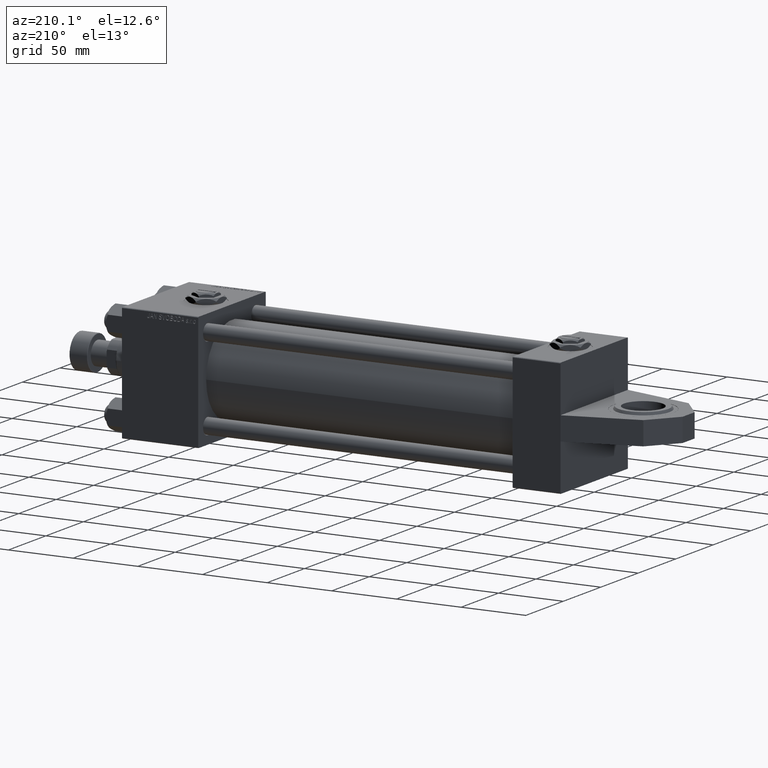
[diagram: clean part render]
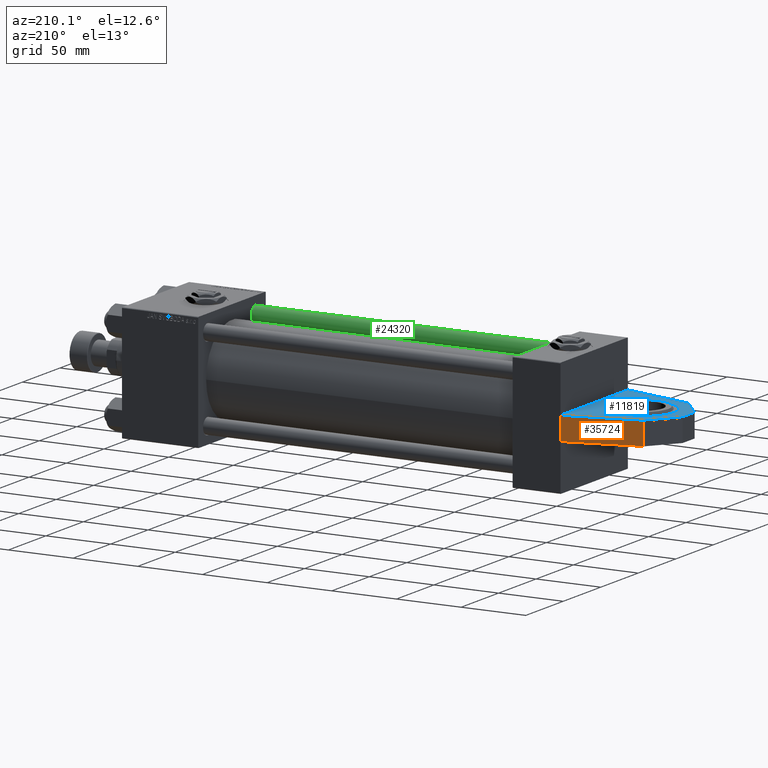
[diagram: same view with three faces highlighted in distinct colors, each labeled with its STEP entity id]
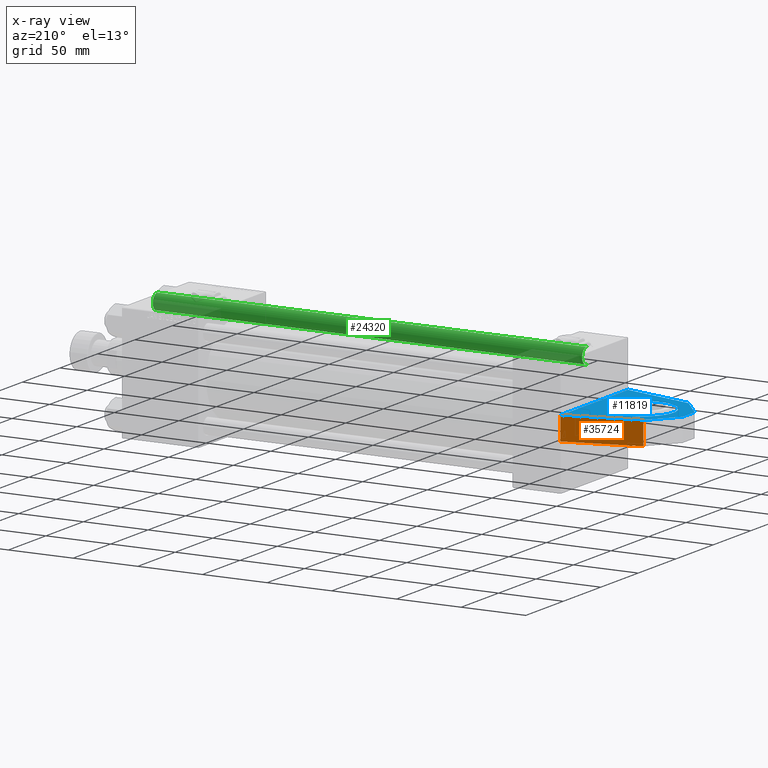
[diagram: x-ray of the same camera — body ghosted, the three highlighted faces saturated]
A machine part, auxiliary view with three faces highlighted in distinct colors.
The next image is the same camera in x-ray (body ghosted, the three faces saturated) — at least one of them is partly hidden behind the body in this view.
Their STEP definitions:

[orange] entity #35724 — the highlighted planar face has unit normal (-0.2588, 0.9659, 0).
#4272 = ORIENTED_EDGE ( 'NONE', *, *, #50606, .T. ) ;
#4644 = ORIENTED_EDGE ( 'NONE', *, *, #36524, .F. ) ;
#5444 = VERTEX_POINT ( 'NONE', #24447 ) ;
#6392 = CARTESIAN_POINT ( 'NONE',  ( -55.50000000000000711, -9.000000000000000000, -30.12881982007243309 ) ) ;
#6656 = DIRECTION ( 'NONE',  ( 0.000000000000000000, 1.000000000000000000, 0.000000000000000000 ) ) ;
#8480 = ORIENTED_EDGE ( 'NONE', *, *, #8742, .F. ) ;
#8600 = CARTESIAN_POINT ( 'NONE',  ( -55.50000000000000711, -9.000000000000000000, -30.12881982007243309 ) ) ;
#8650 = VERTEX_POINT ( 'NONE', #12805 ) ;
#8742 = EDGE_CURVE ( 'NONE', #40298, #27896, #13603, .T. ) ;
#10136 = DIRECTION ( 'NONE',  ( -0.9659258262890672020, 0.000000000000000000, 0.2588190451025247918 ) ) ;
#12184 = DIRECTION ( 'NONE',  ( 0.000000000000000000, 1.000000000000000000, 0.000000000000000000 ) ) ;
#12789 = VECTOR ( 'NONE', #6656, 1000.000000000000000 ) ;
#12805 = CARTESIAN_POINT ( 'NONE',  ( -55.50000000000000711, 9.000000000000000000, -30.12881982007243309 ) ) ;
#13603 = LINE ( 'NONE', #34905, #12789 ) ;
#16437 = CARTESIAN_POINT ( 'NONE',  ( -55.50000000000000711, -9.000000000000000000, -30.12881982007243309 ) ) ;
#17604 = FACE_OUTER_BOUND ( 'NONE', #39413, .T. ) ;
#23986 = ORIENTED_EDGE ( 'NONE', *, *, #47056, .T. ) ;
#24323 = DIRECTION ( 'NONE',  ( -0.9659258262890670910, -0.000000000000000000, 0.2588190451025247918 ) ) ;
#24447 = CARTESIAN_POINT ( 'NONE',  ( -55.50000000000000711, -9.000000000000000000, -30.12881982007243309 ) ) ;
#24464 = CARTESIAN_POINT ( 'NONE',  ( -55.50000000000000711, 9.000000000000000000, -30.12881982007243309 ) ) ;
#27896 = VERTEX_POINT ( 'NONE', #42348 ) ;
#28243 = VECTOR ( 'NONE', #24323, 1000.000000000000227 ) ;
#28762 = VECTOR ( 'NONE', #40459, 1000.000000000000227 ) ;
#30951 = VECTOR ( 'NONE', #12184, 1000.000000000000000 ) ;
#32974 = AXIS2_PLACEMENT_3D ( 'NONE', #6392, #37572, #10136 ) ;
#34905 = CARTESIAN_POINT ( 'NONE',  ( 0.000000000000000000, -9.000000000000000000, -45.00000000000000000 ) ) ;
#35724 = ADVANCED_FACE ( 'NONE', ( #17604 ), #42372, .T. ) ;
#36524 = EDGE_CURVE ( 'NONE', #27896, #8650, #49498, .T. ) ;
#37289 = CARTESIAN_POINT ( 'NONE',  ( 0.000000000000000000, -8.999999999999987566, -44.99999999999999289 ) ) ;
#37572 = DIRECTION ( 'NONE',  ( -0.2588190451025247918, 0.000000000000000000, -0.9659258262890672020 ) ) ;
#39413 = EDGE_LOOP ( 'NONE', ( #4644, #8480, #23986, #4272 ) ) ;
#40298 = VERTEX_POINT ( 'NONE', #37289 ) ;
#40418 = LINE ( 'NONE', #16437, #30951 ) ;
#40459 = DIRECTION ( 'NONE',  ( -0.9659258262890670910, -0.000000000000000000, 0.2588190451025247918 ) ) ;
#41099 = LINE ( 'NONE', #8600, #28243 ) ;
#42348 = CARTESIAN_POINT ( 'NONE',  ( 0.000000000000000000, 9.000000000000000000, -45.00000000000000000 ) ) ;
#42372 = PLANE ( 'NONE',  #32974 ) ;
#47056 = EDGE_CURVE ( 'NONE', #40298, #5444, #41099, .T. ) ;
#49498 = LINE ( 'NONE', #24464, #28762 ) ;
#50606 = EDGE_CURVE ( 'NONE', #5444, #8650, #40418, .T. ) ;

[blue] entity #11819 — the highlighted planar face has unit normal (0, 0, 1).
#440 = LINE ( 'NONE', #26547, #5386 ) ;
#2342 = CARTESIAN_POINT ( 'NONE',  ( 0.000000000000000000, 9.000000000000000000, 0.000000000000000000 ) ) ;
#2492 = DIRECTION ( 'NONE',  ( 0.000000000000000000, 0.000000000000000000, -1.000000000000000000 ) ) ;
#4225 = FACE_BOUND ( 'NONE', #22500, .T. ) ;
#5386 = VECTOR ( 'NONE', #50535, 1000.000000000000000 ) ;
#5523 = VERTEX_POINT ( 'NONE', #9798 ) ;
#5557 = CARTESIAN_POINT ( 'NONE',  ( -73.00000000000001421, 9.000000000000000000, 8.000000000000005329 ) ) ;
#5844 = ORIENTED_EDGE ( 'NONE', *, *, #15903, .T. ) ;
#6080 = LINE ( 'NONE', #18355, #39274 ) ;
#6851 = ORIENTED_EDGE ( 'NONE', *, *, #18851, .T. ) ;
#7669 = CARTESIAN_POINT ( 'NONE',  ( -38.00000000000000000, 9.000000000000000000, 0.000000000000000000 ) ) ;
#8650 = VERTEX_POINT ( 'NONE', #12805 ) ;
#9610 = CARTESIAN_POINT ( 'NONE',  ( -55.50000000000000000, 9.000000000000000000, 30.12881982007244019 ) ) ;
#9798 = CARTESIAN_POINT ( 'NONE',  ( -38.00000000000000000, 9.000000000000000000, -23.50000000000000355 ) ) ;
#10437 = ORIENTED_EDGE ( 'NONE', *, *, #51613, .F. ) ;
#11147 = CARTESIAN_POINT ( 'NONE',  ( 0.000000000000000000, 9.000000000000000000, 45.00000000000000000 ) ) ;
#11819 = ADVANCED_FACE ( 'NONE', ( #4225, #50308 ), #38316, .T. ) ;
#12805 = CARTESIAN_POINT ( 'NONE',  ( -55.50000000000000711, 9.000000000000000000, -30.12881982007243309 ) ) ;
#13259 = EDGE_CURVE ( 'NONE', #14834, #24292, #37974, .T. ) ;
#13779 = AXIS2_PLACEMENT_3D ( 'NONE', #2342, #14861, #47096 ) ;
#14240 = LINE ( 'NONE', #31519, #50390 ) ;
#14834 = VERTEX_POINT ( 'NONE', #5557 ) ;
#14861 = DIRECTION ( 'NONE',  ( -0.000000000000000000, 1.000000000000000000, 0.000000000000000000 ) ) ;
#14889 = EDGE_CURVE ( 'NONE', #8650, #16902, #6080, .T. ) ;
#15639 = DIRECTION ( 'NONE',  ( 0.000000000000000000, 0.000000000000000000, 1.000000000000000000 ) ) ;
#15903 = EDGE_CURVE ( 'NONE', #27998, #27896, #14240, .T. ) ;
#16293 = VECTOR ( 'NONE', #25737, 1000.000000000000227 ) ;
#16388 = CARTESIAN_POINT ( 'NONE',  ( -38.00000000000000000, 9.000000000000000000, 23.50000000000000355 ) ) ;
#16759 = VERTEX_POINT ( 'NONE', #16388 ) ;
#16902 = VERTEX_POINT ( 'NONE', #52245 ) ;
#18273 = CARTESIAN_POINT ( 'NONE',  ( -73.00000000000001421, 9.000000000000000000, 8.000000000000005329 ) ) ;
#18355 = CARTESIAN_POINT ( 'NONE',  ( -73.00000000000001421, 9.000000000000000000, -7.999999999999994671 ) ) ;
#18851 = EDGE_CURVE ( 'NONE', #24292, #27998, #34268, .T. ) ;
#22500 = EDGE_LOOP ( 'NONE', ( #10437, #33767 ) ) ;
#22657 = EDGE_CURVE ( 'NONE', #16902, #14834, #440, .T. ) ;
#24292 = VERTEX_POINT ( 'NONE', #9610 ) ;
#24432 = DIRECTION ( 'NONE',  ( 0.000000000000000000, 0.000000000000000000, 1.000000000000000000 ) ) ;
#24464 = CARTESIAN_POINT ( 'NONE',  ( -55.50000000000000711, 9.000000000000000000, -30.12881982007243309 ) ) ;
#25640 = EDGE_CURVE ( 'NONE', #5523, #16759, #46356, .T. ) ;
#25737 = DIRECTION ( 'NONE',  ( 0.9659258262890672020, 0.000000000000000000, 0.2588190451025247363 ) ) ;
#26547 = CARTESIAN_POINT ( 'NONE',  ( -73.00000000000001421, 9.000000000000000000, -7.999999999999994671 ) ) ;
#27368 = ORIENTED_EDGE ( 'NONE', *, *, #22657, .T. ) ;
#27566 = CIRCLE ( 'NONE', #43733, 23.50000000000000355 ) ;
#27896 = VERTEX_POINT ( 'NONE', #42348 ) ;
#27998 = VERTEX_POINT ( 'NONE', #11147 ) ;
#28762 = VECTOR ( 'NONE', #40459, 1000.000000000000227 ) ;
#29130 = ORIENTED_EDGE ( 'NONE', *, *, #14889, .T. ) ;
#31519 = CARTESIAN_POINT ( 'NONE',  ( 0.000000000000000000, 9.000000000000000000, 45.00000000000000000 ) ) ;
#33710 = DIRECTION ( 'NONE',  ( 0.6202965109737124116, 0.000000000000000000, 0.7843674129346777102 ) ) ;
#33724 = CARTESIAN_POINT ( 'NONE',  ( -55.50000000000000000, 9.000000000000000000, 30.12881982007244019 ) ) ;
#33767 = ORIENTED_EDGE ( 'NONE', *, *, #25640, .F. ) ;
#34268 = LINE ( 'NONE', #33724, #16293 ) ;
#35878 = CARTESIAN_POINT ( 'NONE',  ( -38.00000000000000000, 9.000000000000000000, 0.000000000000000000 ) ) ;
#36524 = EDGE_CURVE ( 'NONE', #27896, #8650, #49498, .T. ) ;
#37974 = LINE ( 'NONE', #18273, #47111 ) ;
#38316 = PLANE ( 'NONE',  #13779 ) ;
#39274 = VECTOR ( 'NONE', #47620, 1000.000000000000227 ) ;
#40459 = DIRECTION ( 'NONE',  ( -0.9659258262890670910, -0.000000000000000000, 0.2588190451025247918 ) ) ;
#41264 = ORIENTED_EDGE ( 'NONE', *, *, #36524, .T. ) ;
#42348 = CARTESIAN_POINT ( 'NONE',  ( 0.000000000000000000, 9.000000000000000000, -45.00000000000000000 ) ) ;
#42739 = ORIENTED_EDGE ( 'NONE', *, *, #13259, .T. ) ;
#43733 = AXIS2_PLACEMENT_3D ( 'NONE', #7669, #45207, #24432 ) ;
#45207 = DIRECTION ( 'NONE',  ( 0.000000000000000000, 1.000000000000000000, 0.000000000000000000 ) ) ;
#46356 = CIRCLE ( 'NONE', #52278, 23.50000000000000355 ) ;
#46839 = EDGE_LOOP ( 'NONE', ( #42739, #6851, #5844, #41264, #29130, #27368 ) ) ;
#47096 = DIRECTION ( 'NONE',  ( 0.000000000000000000, -0.000000000000000000, 1.000000000000000000 ) ) ;
#47111 = VECTOR ( 'NONE', #33710, 1000.000000000000114 ) ;
#47620 = DIRECTION ( 'NONE',  ( -0.6202965109737120786, -0.000000000000000000, 0.7843674129346778212 ) ) ;
#49498 = LINE ( 'NONE', #24464, #28762 ) ;
#50308 = FACE_OUTER_BOUND ( 'NONE', #46839, .T. ) ;
#50390 = VECTOR ( 'NONE', #2492, 1000.000000000000000 ) ;
#50535 = DIRECTION ( 'NONE',  ( 0.000000000000000000, 0.000000000000000000, 1.000000000000000000 ) ) ;
#51613 = EDGE_CURVE ( 'NONE', #16759, #5523, #27566, .T. ) ;
#52137 = DIRECTION ( 'NONE',  ( 0.000000000000000000, 1.000000000000000000, 0.000000000000000000 ) ) ;
#52245 = CARTESIAN_POINT ( 'NONE',  ( -73.00000000000001421, 9.000000000000000000, -7.999999999999994671 ) ) ;
#52278 = AXIS2_PLACEMENT_3D ( 'NONE', #35878, #52137, #15639 ) ;

[green] entity #24320 — the highlighted cylindrical surface (edge-blend (fillet) strip) has radius 6 mm, axis along (-1, 0, -0).
#590 = EDGE_CURVE ( 'NONE', #41055, #4525, #50061, .T. ) ;
#2641 = LINE ( 'NONE', #35408, #15868 ) ;
#2648 = FACE_OUTER_BOUND ( 'NONE', #11146, .T. ) ;
#4525 = VERTEX_POINT ( 'NONE', #27408 ) ;
#4842 = LINE ( 'NONE', #21103, #6716 ) ;
#6716 = VECTOR ( 'NONE', #18698, 1000.000000000000000 ) ;
#7262 = CIRCLE ( 'NONE', #11475, 6.000000000000000888 ) ;
#7872 = CARTESIAN_POINT ( 'NONE',  ( 6.000000000000000888, 7.347880794884120722E-16, 332.5000000000001137 ) ) ;
#9558 = DIRECTION ( 'NONE',  ( 0.000000000000000000, 0.000000000000000000, -1.000000000000000000 ) ) ;
#11028 = DIRECTION ( 'NONE',  ( -0.000000000000000000, -0.000000000000000000, 1.000000000000000000 ) ) ;
#11146 = EDGE_LOOP ( 'NONE', ( #13216, #11328, #24929, #13013 ) ) ;
#11328 = ORIENTED_EDGE ( 'NONE', *, *, #26321, .T. ) ;
#11475 = AXIS2_PLACEMENT_3D ( 'NONE', #46317, #9558, #17287 ) ;
#13013 = ORIENTED_EDGE ( 'NONE', *, *, #590, .T. ) ;
#13216 = ORIENTED_EDGE ( 'NONE', *, *, #33272, .F. ) ;
#15868 = VECTOR ( 'NONE', #35667, 1000.000000000000000 ) ;
#17287 = DIRECTION ( 'NONE',  ( 1.000000000000000000, 0.000000000000000000, 0.000000000000000000 ) ) ;
#18660 = CYLINDRICAL_SURFACE ( 'NONE', #30150, 6.000000000000000888 ) ;
#18698 = DIRECTION ( 'NONE',  ( -0.000000000000000000, -0.000000000000000000, -1.000000000000000000 ) ) ;
#21103 = CARTESIAN_POINT ( 'NONE',  ( -6.000000000000000888, 0.000000000000000000, 333.0000000000000000 ) ) ;
#24320 = ADVANCED_FACE ( 'NONE', ( #2648 ), #18660, .T. ) ;
#24929 = ORIENTED_EDGE ( 'NONE', *, *, #39166, .T. ) ;
#26321 = EDGE_CURVE ( 'NONE', #48931, #40081, #7262, .T. ) ;
#27165 = DIRECTION ( 'NONE',  ( -0.000000000000000000, -0.000000000000000000, -1.000000000000000000 ) ) ;
#27408 = CARTESIAN_POINT ( 'NONE',  ( 6.000000000000000888, 7.347880794884120722E-16, 0.5000000000000004441 ) ) ;
#28785 = CARTESIAN_POINT ( 'NONE',  ( -6.000000000000000888, 0.000000000000000000, 0.5000000000000004441 ) ) ;
#30150 = AXIS2_PLACEMENT_3D ( 'NONE', #42639, #27165, #43424 ) ;
#31011 = DIRECTION ( 'NONE',  ( 1.000000000000000000, 0.000000000000000000, 0.000000000000000000 ) ) ;
#33272 = EDGE_CURVE ( 'NONE', #48931, #4525, #2641, .T. ) ;
#33899 = AXIS2_PLACEMENT_3D ( 'NONE', #35532, #11028, #31011 ) ;
#34952 = CARTESIAN_POINT ( 'NONE',  ( -6.000000000000000888, 0.000000000000000000, 332.5000000000001137 ) ) ;
#35408 = CARTESIAN_POINT ( 'NONE',  ( 6.000000000000000888, 7.347880794884120722E-16, 333.0000000000000000 ) ) ;
#35532 = CARTESIAN_POINT ( 'NONE',  ( 0.000000000000000000, 0.000000000000000000, 0.5000000000000004441 ) ) ;
#35667 = DIRECTION ( 'NONE',  ( -0.000000000000000000, -0.000000000000000000, -1.000000000000000000 ) ) ;
#39166 = EDGE_CURVE ( 'NONE', #40081, #41055, #4842, .T. ) ;
#40081 = VERTEX_POINT ( 'NONE', #34952 ) ;
#41055 = VERTEX_POINT ( 'NONE', #28785 ) ;
#42639 = CARTESIAN_POINT ( 'NONE',  ( 0.000000000000000000, 0.000000000000000000, 333.0000000000000000 ) ) ;
#43424 = DIRECTION ( 'NONE',  ( -1.000000000000000000, 0.000000000000000000, 0.000000000000000000 ) ) ;
#46317 = CARTESIAN_POINT ( 'NONE',  ( 0.000000000000000000, 0.000000000000000000, 332.5000000000001137 ) ) ;
#48931 = VERTEX_POINT ( 'NONE', #7872 ) ;
#50061 = CIRCLE ( 'NONE', #33899, 6.000000000000000888 ) ;